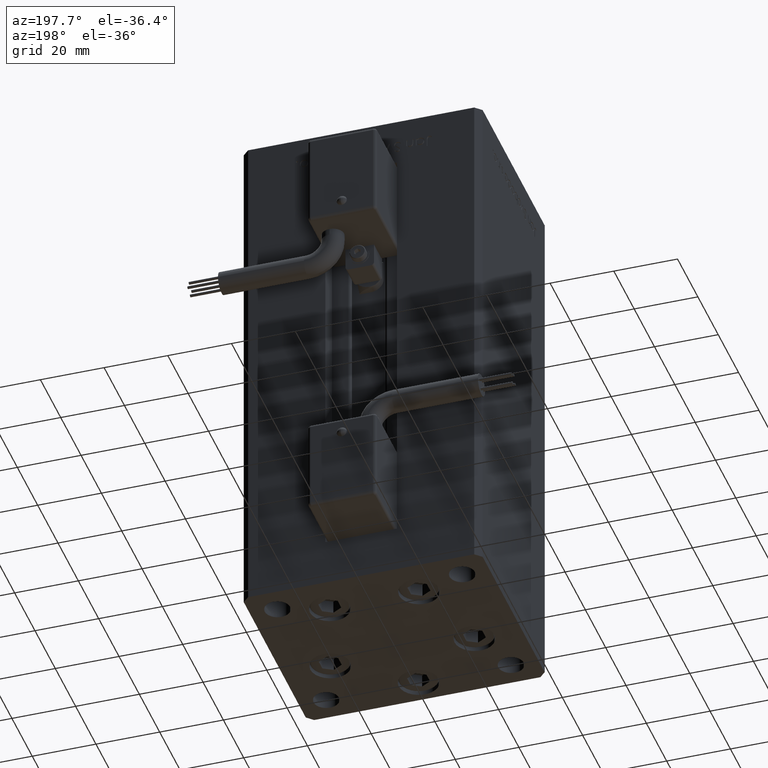
[diagram: clean part render]
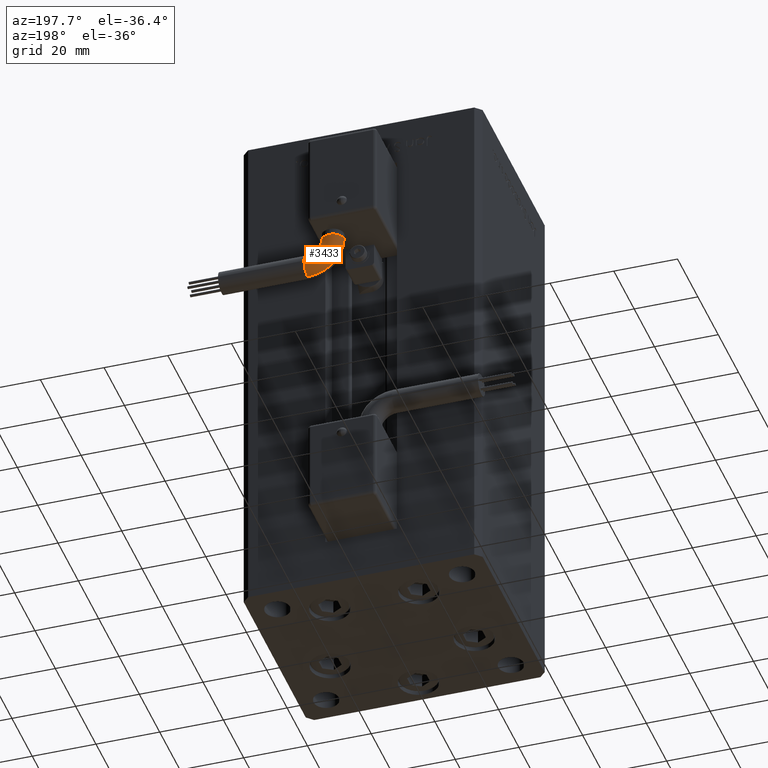
[diagram: same view with one face highlighted and labeled with its STEP entity id]
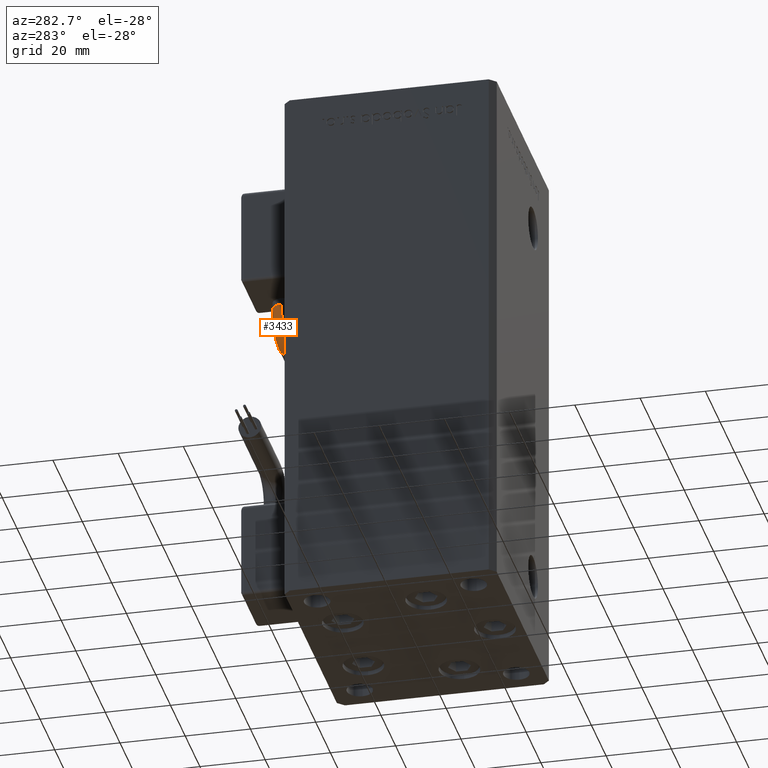
[diagram: same view with one face highlighted and labeled with its STEP entity id]
A machine part, auxiliary view. The second image highlights one B-rep face of the part: STEP entity #3433.
A second angle (auxiliary view) of the same face is appended — the face is thin or edge-on in the first view.
In plain terms, the highlighted toroidal blend (fillet) surface has major radius 8 mm and minor (blend) radius 3.5 mm.
Its self-contained STEP definition (entity closure, byte-faithful):
#574 = CARTESIAN_POINT ( 'NONE',  ( 5.799999999999999822, 42.00000000000000000, -57.00000000000000000 ) ) ;
#1859 = AXIS2_PLACEMENT_3D ( 'NONE', #19711, #14982, #49994 ) ;
#1896 = CIRCLE ( 'NONE', #14277, 3.500000000000000000 ) ;
#2841 = CARTESIAN_POINT ( 'NONE',  ( 2.299999999999999822, 41.99999999999999289, -57.00000000000000000 ) ) ;
#3433 = ADVANCED_FACE ( 'NONE', ( #41515 ), #13231, .T. ) ;
#3988 = CARTESIAN_POINT ( 'NONE',  ( 13.79999999999999893, 42.00000000000000000, -57.00000000000000000 ) ) ;
#4467 = DIRECTION ( 'NONE',  ( -1.000000000000000000, 0.000000000000000000, 0.000000000000000000 ) ) ;
#5594 = AXIS2_PLACEMENT_3D ( 'NONE', #51069, #9374, #33830 ) ;
#7341 = DIRECTION ( 'NONE',  ( -8.700000000000000360E-16, 1.000000000000000000, -1.931788062847999952E-31 ) ) ;
#9374 = DIRECTION ( 'NONE',  ( -8.700000000000000360E-16, 1.000000000000000000, -1.931788062847999952E-31 ) ) ;
#10392 = EDGE_CURVE ( 'NONE', #28328, #10900, #17496, .T. ) ;
#10900 = VERTEX_POINT ( 'NONE', #21828 ) ;
#11440 = CARTESIAN_POINT ( 'NONE',  ( 13.79999999999999893, 42.00000000000000000, -68.50000000000000000 ) ) ;
#13231 = TOROIDAL_SURFACE ( 'NONE', #40748, 8.000000000000000000, 3.500000000000000000 ) ;
#14277 = AXIS2_PLACEMENT_3D ( 'NONE', #45434, #31534, #53220 ) ;
#14836 = EDGE_CURVE ( 'NONE', #30220, #47407, #44302, .T. ) ;
#14982 = DIRECTION ( 'NONE',  ( 1.000000000000000000, 0.000000000000000000, 2.220446049250000002E-16 ) ) ;
#15874 = DIRECTION ( 'NONE',  ( 0.000000000000000000, 0.000000000000000000, -1.000000000000000000 ) ) ;
#16444 = DIRECTION ( 'NONE',  ( -8.700000000000000360E-16, 1.000000000000000000, -1.931788062847999952E-31 ) ) ;
#16876 = CARTESIAN_POINT ( 'NONE',  ( 13.79999999999999893, 45.50000000000000711, -65.00000000000000000 ) ) ;
#17496 = CIRCLE ( 'NONE', #29026, 3.500000000000003109 ) ;
#19603 = CARTESIAN_POINT ( 'NONE',  ( 5.799999999999999822, 45.50000000000000711, -57.00000000000000000 ) ) ;
#19711 = CARTESIAN_POINT ( 'NONE',  ( 13.79999999999999893, 42.00000000000000000, -65.00000000000000000 ) ) ;
#21828 = CARTESIAN_POINT ( 'NONE',  ( 13.79999999999999893, 41.99999999999999289, -61.50000000000000000 ) ) ;
#22575 = EDGE_CURVE ( 'NONE', #23392, #28328, #49745, .T. ) ;
#23136 = EDGE_CURVE ( 'NONE', #26675, #30220, #1896, .T. ) ;
#23392 = VERTEX_POINT ( 'NONE', #11440 ) ;
#26675 = VERTEX_POINT ( 'NONE', #2841 ) ;
#26900 = CARTESIAN_POINT ( 'NONE',  ( 9.299999999999998934, 41.99999999999999289, -57.00000000000000000 ) ) ;
#28321 = EDGE_CURVE ( 'NONE', #23392, #26675, #54395, .T. ) ;
#28328 = VERTEX_POINT ( 'NONE', #16876 ) ;
#28713 = DIRECTION ( 'NONE',  ( 1.000000000000000000, 8.700000000000000360E-16, -5.150493179006521628E-47 ) ) ;
#28972 = CARTESIAN_POINT ( 'NONE',  ( 13.79999999999999893, 42.00000000000000000, -57.00000000000000000 ) ) ;
#29026 = AXIS2_PLACEMENT_3D ( 'NONE', #50629, #45648, #15874 ) ;
#29120 = ORIENTED_EDGE ( 'NONE', *, *, #40466, .F. ) ;
#30220 = VERTEX_POINT ( 'NONE', #19603 ) ;
#31534 = DIRECTION ( 'NONE',  ( 2.820446049250009751E-16, -8.700000000000000360E-16, -1.000000000000000000 ) ) ;
#32348 = EDGE_LOOP ( 'NONE', ( #51914, #51970, #46140, #54929, #29120, #54370 ) ) ;
#33830 = DIRECTION ( 'NONE',  ( -1.000000000000000000, -6.033820786006285717E-16, 0.000000000000000000 ) ) ;
#36306 = AXIS2_PLACEMENT_3D ( 'NONE', #574, #39189, #4467 ) ;
#39189 = DIRECTION ( 'NONE',  ( 2.820446049250009751E-16, -8.700000000000000360E-16, -1.000000000000000000 ) ) ;
#40466 = EDGE_CURVE ( 'NONE', #10900, #47407, #49513, .T. ) ;
#40748 = AXIS2_PLACEMENT_3D ( 'NONE', #28972, #7341, #28713 ) ;
#41515 = FACE_OUTER_BOUND ( 'NONE', #32348, .T. ) ;
#44302 = CIRCLE ( 'NONE', #36306, 3.500000000000000000 ) ;
#45434 = CARTESIAN_POINT ( 'NONE',  ( 5.799999999999999822, 42.00000000000000000, -57.00000000000000000 ) ) ;
#45648 = DIRECTION ( 'NONE',  ( 1.000000000000000000, 0.000000000000000000, 2.220446049250000002E-16 ) ) ;
#46140 = ORIENTED_EDGE ( 'NONE', *, *, #23136, .T. ) ;
#47407 = VERTEX_POINT ( 'NONE', #26900 ) ;
#47795 = AXIS2_PLACEMENT_3D ( 'NONE', #3988, #16444, #54547 ) ;
#49513 = CIRCLE ( 'NONE', #47795, 4.500000000000000888 ) ;
#49745 = CIRCLE ( 'NONE', #1859, 3.500000000000003109 ) ;
#49994 = DIRECTION ( 'NONE',  ( 0.000000000000000000, 0.000000000000000000, -1.000000000000000000 ) ) ;
#50629 = CARTESIAN_POINT ( 'NONE',  ( 13.79999999999999893, 42.00000000000000000, -65.00000000000000000 ) ) ;
#51069 = CARTESIAN_POINT ( 'NONE',  ( 13.79999999999999893, 42.00000000000000000, -57.00000000000000000 ) ) ;
#51914 = ORIENTED_EDGE ( 'NONE', *, *, #22575, .F. ) ;
#51970 = ORIENTED_EDGE ( 'NONE', *, *, #28321, .T. ) ;
#53220 = DIRECTION ( 'NONE',  ( -1.000000000000000000, 0.000000000000000000, 0.000000000000000000 ) ) ;
#54370 = ORIENTED_EDGE ( 'NONE', *, *, #10392, .F. ) ;
#54395 = CIRCLE ( 'NONE', #5594, 11.50000000000000000 ) ;
#54547 = DIRECTION ( 'NONE',  ( -1.000000000000000000, -1.541976423090494844E-15, 0.000000000000000000 ) ) ;
#54929 = ORIENTED_EDGE ( 'NONE', *, *, #14836, .T. ) ;